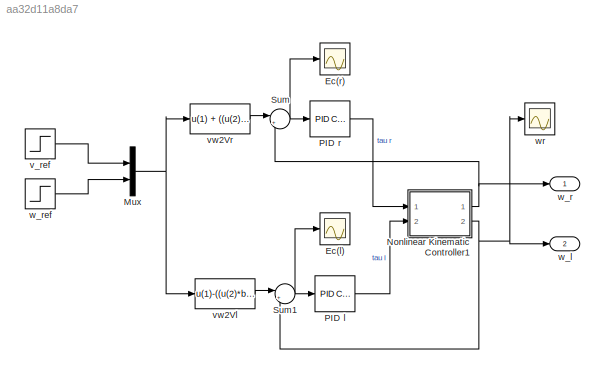
MODEL slx_aa32d11a8da7
KIND model
BLOCK [Scope] Ec(l)
  DataFormat = StructureWithTime
  Floating = off
  NumInputPorts = 1
  Ports = [1]
  SampleTime = 0
  SaveName = ScopeData7
  ShowLegends = off
  ZoomMode = xonly
BLOCK [Scope] Ec(r)
  DataFormat = StructureWithTime
  Floating = off
  NumInputPorts = 1
  Ports = [1]
  SampleTime = 0
  SaveName = ScopeData6
  ShowLegends = off
  ZoomMode = xonly
BLOCK [Mux] Mux
  DisplayOption = bar
  Inputs = 2
  Ports = [2, 1]
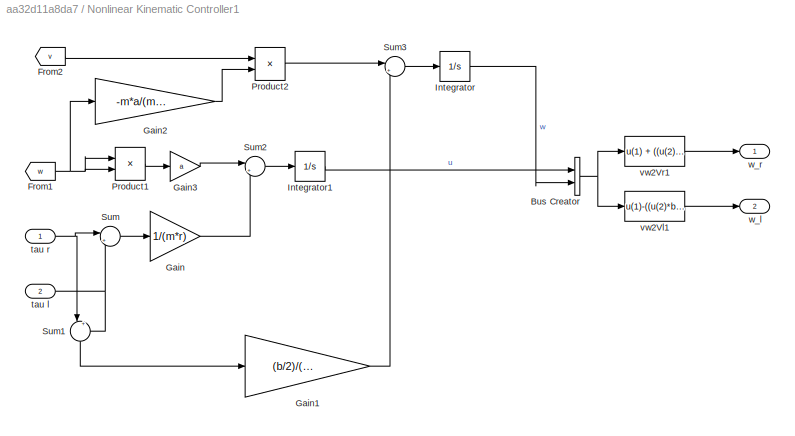
BLOCK [SubSystem] Nonlinear Kinematic Controller1
  Ports = [2, 2]
  RequestExecContextInheritance = off
BLOCK [BusCreator] Nonlinear Kinematic Controller1/Bus Creator
  DisplayOption = bar
  Inputs = 2
  Ports = [2, 1]
BLOCK [From] Nonlinear Kinematic Controller1/From1
  GotoTag = w
BLOCK [From] Nonlinear Kinematic Controller1/From2
  GotoTag = v
BLOCK [Gain] Nonlinear Kinematic Controller1/Gain
  Gain = 1/(m*r)
  OutDataTypeStr = Inherit: Inherit via internal rule
  ParamDataTypeStr = Inherit: Inherit via internal rule
  SaturateOnIntegerOverflow = off
BLOCK [Gain] Nonlinear Kinematic Controller1/Gain1
  Gain = (b/2)/(r*(m*a*a+Ic))
  OutDataTypeStr = Inherit: Inherit via internal rule
  ParamDataTypeStr = Inherit: Inherit via internal rule
  SaturateOnIntegerOverflow = off
BLOCK [Gain] Nonlinear Kinematic Controller1/Gain2
  Gain = -m*a/(m*a*a+Ic)
  OutDataTypeStr = Inherit: Inherit via internal rule
  ParamDataTypeStr = Inherit: Inherit via internal rule
  SaturateOnIntegerOverflow = off
BLOCK [Gain] Nonlinear Kinematic Controller1/Gain3
  Gain = a
  OutDataTypeStr = Inherit: Inherit via internal rule
  ParamDataTypeStr = Inherit: Inherit via internal rule
  SaturateOnIntegerOverflow = off
BLOCK [Integrator] Nonlinear Kinematic Controller1/Integrator
  Ports = [1, 1]
BLOCK [Integrator] Nonlinear Kinematic Controller1/Integrator1
  Ports = [1, 1]
BLOCK [Product] Nonlinear Kinematic Controller1/Product1
  InputSameDT = off
  OutDataTypeStr = Inherit: Inherit via internal rule
  Ports = [2, 1]
  RndMeth = Floor
  SaturateOnIntegerOverflow = off
BLOCK [Product] Nonlinear Kinematic Controller1/Product2
  InputSameDT = off
  OutDataTypeStr = Inherit: Inherit via internal rule
  Ports = [2, 1]
  RndMeth = Floor
  SaturateOnIntegerOverflow = off
BLOCK [Sum] Nonlinear Kinematic Controller1/Sum
  IconShape = round
  InputSameDT = off
  Inputs = |++
  OutDataTypeStr = Inherit: Inherit via internal rule
  Ports = [2, 1]
  SaturateOnIntegerOverflow = off
BLOCK [Sum] Nonlinear Kinematic Controller1/Sum1
  IconShape = round
  InputSameDT = off
  Inputs = |+-
  OutDataTypeStr = Inherit: Inherit via internal rule
  Ports = [2, 1]
  SaturateOnIntegerOverflow = off
BLOCK [Sum] Nonlinear Kinematic Controller1/Sum2
  IconShape = round
  InputSameDT = off
  Inputs = |++
  OutDataTypeStr = Inherit: Inherit via internal rule
  Ports = [2, 1]
  SaturateOnIntegerOverflow = off
BLOCK [Sum] Nonlinear Kinematic Controller1/Sum3
  IconShape = round
  InputSameDT = off
  Inputs = |++
  OutDataTypeStr = Inherit: Inherit via internal rule
  Ports = [2, 1]
  SaturateOnIntegerOverflow = off
BLOCK [Inport] Nonlinear Kinematic Controller1/tau l
  IconDisplay = Port number
  Port = 2
BLOCK [Inport] Nonlinear Kinematic Controller1/tau r
  IconDisplay = Port number
BLOCK [Fcn] Nonlinear Kinematic Controller1/vw2Vl1
  Expr = u(1)-((u(2)*b)/2)
BLOCK [Fcn] Nonlinear Kinematic Controller1/vw2Vr1
  Expr = u(1) + ((u(2)*b)/2)
BLOCK [Outport] Nonlinear Kinematic Controller1/w_l
  IconDisplay = Port number
  Port = 2
BLOCK [Outport] Nonlinear Kinematic Controller1/w_r
  IconDisplay = Port number
BLOCK [Reference] PID l  REF=simulink/Continuous/PID Controller
  AntiWindupMode = none
  Controller = PID
  D = Kd
  DOutDataTypeStr = Inherit: Inherit via internal rule
  DOutMax = []
  DOutMin = []
  DParamDataTypeStr = Inherit: Inherit via internal rule
  DParamMax = []
  DParamMin = []
  ExternalReset = none
  FilterContinuousStateAttributes = ''
  FilterMethod = Forward Euler
  FilterOutDataTypeStr = Inherit: Inherit via internal rule
  FilterOutMax = []
  FilterOutMin = []
  FilterRTWStateStorageClass = Auto
  FilterStateMustResolveToSignalObject = off
  Form = Parallel
  I = Ki
  IOutDataTypeStr = Inherit: Inherit via internal rule
  IOutMax = []
  IOutMin = []
  IParamDataTypeStr = Inherit: Inherit via internal rule
  IParamMax = []
  IParamMin = []
  IgnoreLimit = off
  InitialConditionForFilter = 0
  InitialConditionForIntegrator = 0
  InitialConditionSource = internal
  IntegratorContinuousStateAttributes = ''
  IntegratorMethod = Forward Euler
  IntegratorOutDataTypeStr = Inherit: Inherit via internal rule
  IntegratorOutMax = []
  IntegratorOutMin = []
  IntegratorRTWStateStorageClass = Auto
  IntegratorStateMustResolveToSignalObject = off
  Kb = 1
  KbOutDataTypeStr = Inherit: Inherit via internal rule
  KbOutMax = []
  KbOutMin = []
  KbParamDataTypeStr = Inherit: Inherit via internal rule
  KbParamMax = []
  KbParamMin = []
  Kt = 1
  KtOutDataTypeStr = Inherit: Inherit via internal rule
  KtOutMax = []
  KtOutMin = []
  KtParamDataTypeStr = Inherit: Inherit via internal rule
  KtParamMax = []
  KtParamMin = []
  LimitOutput = off
  LinearizeAsGain = on
  LockScale = off
  LowerSaturationLimit = -inf
  N = 100
  NOutDataTypeStr = Inherit: Inherit via internal rule
  NOutMax = []
  NOutMin = []
  NParamDataTypeStr = Inherit: Inherit via internal rule
  NParamMax = []
  NParamMin = []
  P = Kp
  POutDataTypeStr = Inherit: Inherit via internal rule
  POutMax = []
  POutMin = []
  PParamDataTypeStr = Inherit: Inherit via internal rule
  PParamMax = []
  PParamMin = []
  Ports = [1, 1]
  RndMeth = Floor
  SampleTime = 1
  SaturateOnIntegerOverflow = off
  SaturationOutDataTypeStr = Inherit: Same as input
  SaturationOutMax = []
  SaturationOutMin = []
  SourceBlock = simulink/Continuous/PID Controller
  SourceType = PID 1dof
  SumAccumDataTypeStr = Inherit: Inherit via internal rule
  SumDAccumDataTypeStr = Inherit: Inherit via internal rule
  SumDOutDataTypeStr = Inherit: Inherit via internal rule
  SumDOutMax = []
  SumDOutMin = []
  SumI1AccumDataTypeStr = Inherit: Inherit via internal rule
  SumI1OutDataTypeStr = Inherit: Inherit via internal rule
  SumI1OutMax = []
  SumI1OutMin = []
  SumI2AccumDataTypeStr = Inherit: Inherit via internal rule
  SumI2OutDataTypeStr = Inherit: Inherit via internal rule
  SumI2OutMax = []
  SumI2OutMin = []
  SumI3AccumDataTypeStr = Inherit: Inherit via internal rule
  SumI3OutDataTypeStr = Inherit: Inherit via internal rule
  SumI3OutMax = []
  SumI3OutMin = []
  SumOutDataTypeStr = Inherit: Inherit via internal rule
  SumOutMax = []
  SumOutMin = []
  TimeDomain = Continuous-time
  TrackingMode = off
  UpperSaturationLimit = inf
  ZeroCross = on
BLOCK [Reference] PID r  REF=simulink/Continuous/PID Controller
  AntiWindupMode = none
  Controller = PID
  D = Kd
  DOutDataTypeStr = Inherit: Inherit via internal rule
  DOutMax = []
  DOutMin = []
  DParamDataTypeStr = Inherit: Inherit via internal rule
  DParamMax = []
  DParamMin = []
  ExternalReset = none
  FilterContinuousStateAttributes = ''
  FilterMethod = Forward Euler
  FilterOutDataTypeStr = Inherit: Inherit via internal rule
  FilterOutMax = []
  FilterOutMin = []
  FilterRTWStateStorageClass = Auto
  FilterStateMustResolveToSignalObject = off
  Form = Parallel
  I = Ki
  IOutDataTypeStr = Inherit: Inherit via internal rule
  IOutMax = []
  IOutMin = []
  IParamDataTypeStr = Inherit: Inherit via internal rule
  IParamMax = []
  IParamMin = []
  IgnoreLimit = off
  InitialConditionForFilter = 0
  InitialConditionForIntegrator = 0
  InitialConditionSource = internal
  IntegratorContinuousStateAttributes = ''
  IntegratorMethod = Forward Euler
  IntegratorOutDataTypeStr = Inherit: Inherit via internal rule
  IntegratorOutMax = []
  IntegratorOutMin = []
  IntegratorRTWStateStorageClass = Auto
  IntegratorStateMustResolveToSignalObject = off
  Kb = 1
  KbOutDataTypeStr = Inherit: Inherit via internal rule
  KbOutMax = []
  KbOutMin = []
  KbParamDataTypeStr = Inherit: Inherit via internal rule
  KbParamMax = []
  KbParamMin = []
  Kt = 1
  KtOutDataTypeStr = Inherit: Inherit via internal rule
  KtOutMax = []
  KtOutMin = []
  KtParamDataTypeStr = Inherit: Inherit via internal rule
  KtParamMax = []
  KtParamMin = []
  LimitOutput = off
  LinearizeAsGain = on
  LockScale = off
  LowerSaturationLimit = -inf
  N = 100
  NOutDataTypeStr = Inherit: Inherit via internal rule
  NOutMax = []
  NOutMin = []
  NParamDataTypeStr = Inherit: Inherit via internal rule
  NParamMax = []
  NParamMin = []
  P = Kp
  POutDataTypeStr = Inherit: Inherit via internal rule
  POutMax = []
  POutMin = []
  PParamDataTypeStr = Inherit: Inherit via internal rule
  PParamMax = []
  PParamMin = []
  Ports = [1, 1]
  RndMeth = Floor
  SampleTime = 1
  SaturateOnIntegerOverflow = off
  SaturationOutDataTypeStr = Inherit: Same as input
  SaturationOutMax = []
  SaturationOutMin = []
  SourceBlock = simulink/Continuous/PID Controller
  SourceType = PID 1dof
  SumAccumDataTypeStr = Inherit: Inherit via internal rule
  SumDAccumDataTypeStr = Inherit: Inherit via internal rule
  SumDOutDataTypeStr = Inherit: Inherit via internal rule
  SumDOutMax = []
  SumDOutMin = []
  SumI1AccumDataTypeStr = Inherit: Inherit via internal rule
  SumI1OutDataTypeStr = Inherit: Inherit via internal rule
  SumI1OutMax = []
  SumI1OutMin = []
  SumI2AccumDataTypeStr = Inherit: Inherit via internal rule
  SumI2OutDataTypeStr = Inherit: Inherit via internal rule
  SumI2OutMax = []
  SumI2OutMin = []
  SumI3AccumDataTypeStr = Inherit: Inherit via internal rule
  SumI3OutDataTypeStr = Inherit: Inherit via internal rule
  SumI3OutMax = []
  SumI3OutMin = []
  SumOutDataTypeStr = Inherit: Inherit via internal rule
  SumOutMax = []
  SumOutMin = []
  TimeDomain = Continuous-time
  TrackingMode = off
  UpperSaturationLimit = inf
  ZeroCross = on
BLOCK [Sum] Sum
  IconShape = round
  InputSameDT = off
  Inputs = |+-
  OutDataTypeStr = Inherit: Inherit via internal rule
  Ports = [2, 1]
  SaturateOnIntegerOverflow = off
BLOCK [Sum] Sum1
  IconShape = round
  InputSameDT = off
  Inputs = |+-
  OutDataTypeStr = Inherit: Inherit via internal rule
  Ports = [2, 1]
  SaturateOnIntegerOverflow = off
BLOCK [Step] v_ref
  Before = 1
  SampleTime = 0
BLOCK [Fcn] vw2Vl
  Expr = u(1)-((u(2)*b)/2)
BLOCK [Fcn] vw2Vr
  Expr = u(1) + ((u(2)*b)/2)
BLOCK [Outport] w_l
  IconDisplay = Port number
  Port = 2
BLOCK [Outport] w_r
  IconDisplay = Port number
BLOCK [Step] w_ref
  After = 0
  SampleTime = 0
BLOCK [Scope] wr
  DataFormat = StructureWithTime
  Floating = off
  NumInputPorts = 1
  Ports = [1]
  SampleTime = 0
  SaveName = ScopeData3
  ShowLegends = off
  ZoomMode = xonly
NET Mux:1 -> vw2Vl:1, vw2Vr:1
NET Nonlinear Kinematic Controller1/Bus Creator:1 -> Nonlinear Kinematic Controller1/vw2Vl1:1, Nonlinear Kinematic Controller1/vw2Vr1:1
NET Nonlinear Kinematic Controller1/From1:1 -> Nonlinear Kinematic Controller1/Gain2:1, Nonlinear Kinematic Controller1/Product1:1, Nonlinear Kinematic Controller1/Product1:2
LINE Nonlinear Kinematic Controller1/From2:1 -> Nonlinear Kinematic Controller1/Product2:1
LINE Nonlinear Kinematic Controller1/Gain1:1 -> Nonlinear Kinematic Controller1/Sum3:2
LINE Nonlinear Kinematic Controller1/Gain2:1 -> Nonlinear Kinematic Controller1/Product2:2
LINE Nonlinear Kinematic Controller1/Gain3:1 -> Nonlinear Kinematic Controller1/Sum2:1
LINE Nonlinear Kinematic Controller1/Gain:1 -> Nonlinear Kinematic Controller1/Sum2:2
LINE Nonlinear Kinematic Controller1/Integrator1:1 -> Nonlinear Kinematic Controller1/Bus Creator:1
LINE Nonlinear Kinematic Controller1/Integrator:1 -> Nonlinear Kinematic Controller1/Bus Creator:2
LINE Nonlinear Kinematic Controller1/Product1:1 -> Nonlinear Kinematic Controller1/Gain3:1
LINE Nonlinear Kinematic Controller1/Product2:1 -> Nonlinear Kinematic Controller1/Sum3:1
LINE Nonlinear Kinematic Controller1/Sum1:1 -> Nonlinear Kinematic Controller1/Gain1:1
LINE Nonlinear Kinematic Controller1/Sum2:1 -> Nonlinear Kinematic Controller1/Integrator1:1
LINE Nonlinear Kinematic Controller1/Sum3:1 -> Nonlinear Kinematic Controller1/Integrator:1
LINE Nonlinear Kinematic Controller1/Sum:1 -> Nonlinear Kinematic Controller1/Gain:1
NET Nonlinear Kinematic Controller1/tau l:1 -> Nonlinear Kinematic Controller1/Sum1:2, Nonlinear Kinematic Controller1/Sum:2
NET Nonlinear Kinematic Controller1/tau r:1 -> Nonlinear Kinematic Controller1/Sum1:1, Nonlinear Kinematic Controller1/Sum:1
LINE Nonlinear Kinematic Controller1/vw2Vl1:1 -> Nonlinear Kinematic Controller1/w_l:1
LINE Nonlinear Kinematic Controller1/vw2Vr1:1 -> Nonlinear Kinematic Controller1/w_r:1
NET Nonlinear Kinematic Controller1:1 -> Sum:2, w_r:1
NET Nonlinear Kinematic Controller1:2 -> Sum1:2, w_l:1, wr:1
LINE PID l:1 -> Nonlinear Kinematic Controller1:2
LINE PID r:1 -> Nonlinear Kinematic Controller1:1
NET Sum1:1 -> Ec(l):1, PID l:1
NET Sum:1 -> Ec(r):1, PID r:1
LINE v_ref:1 -> Mux:1
LINE vw2Vl:1 -> Sum1:1
LINE vw2Vr:1 -> Sum:1
LINE w_ref:1 -> Mux:2
note: NET lines group one-source signal fan-out (src -> all destinations, sorted); 1:1 wires keep LINE
